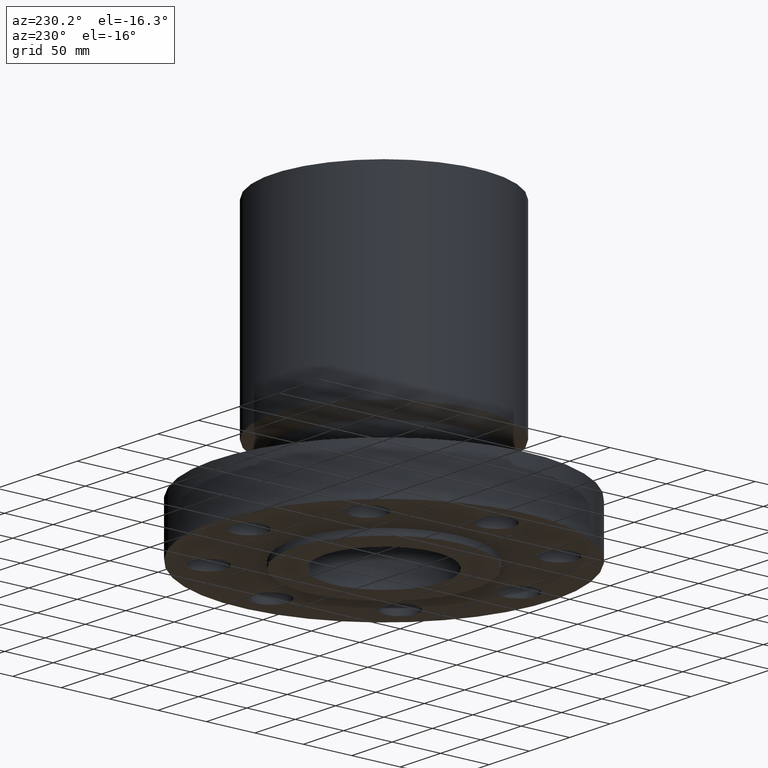
[diagram: clean part render]
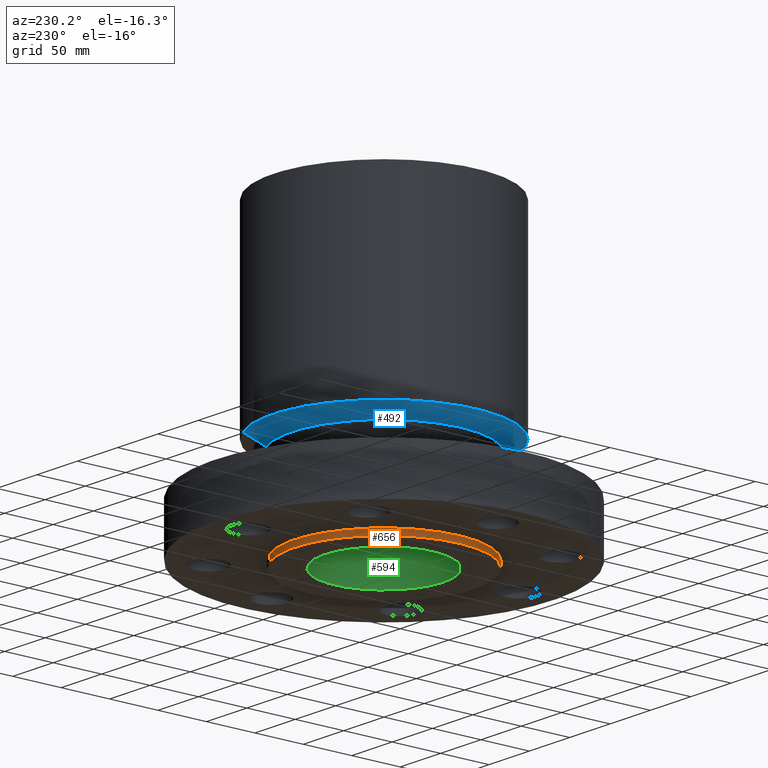
[diagram: same view with three faces highlighted in distinct colors, each labeled with its STEP entity id]
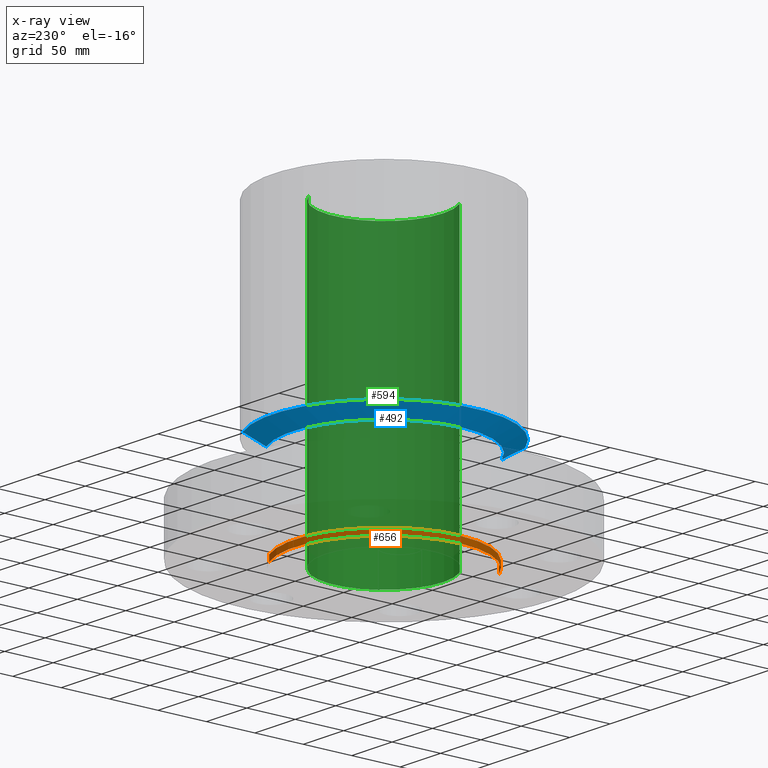
[diagram: x-ray of the same camera — body ghosted, the three highlighted faces saturated]
A machine part, auxiliary view with three faces highlighted in distinct colors.
The next image is the same camera in x-ray (body ghosted, the three faces saturated) — at least one of them is partly hidden behind the body in this view.
Their STEP definitions:

[orange] entity #656 — the highlighted cylindrical surface (partial cylindrical patch) has radius 92.837 mm, axis along (0, 0, -1).
#118=AXIS2_PLACEMENT_3D('Circle Axis2P3D',#116,#117,$) ;
#614=AXIS2_PLACEMENT_3D('Circle Axis2P3D',#612,#613,$) ;
#638=AXIS2_PLACEMENT_3D('Cylinder Axis2P3D',#635,#636,#637) ;
#111=CARTESIAN_POINT('Vertex',(1.75230034361,3.20756426372,0.)) ;
#113=CARTESIAN_POINT('Vertex',(-1.75230034361,-3.20756426372,0.)) ;
#116=CARTESIAN_POINT('Axis2P3D Location',(0.,0.,0.)) ;
#612=CARTESIAN_POINT('Axis2P3D Location',(0.,0.,-0.250000000001)) ;
#616=CARTESIAN_POINT('Vertex',(-1.75230034361,-3.20756426372,-0.250000000001)) ;
#618=CARTESIAN_POINT('Vertex',(1.75230034361,3.20756426372,-0.250000000001)) ;
#635=CARTESIAN_POINT('Axis2P3D Location',(0.,0.,5.75000000002)) ;
#640=CARTESIAN_POINT('Line Origine',(-1.75230034361,-3.20756426372,-0.125000000001)) ;
#645=CARTESIAN_POINT('Line Origine',(1.75230034361,3.20756426372,-0.125000000001)) ;
#117=DIRECTION('Axis2P3D Direction',(0.,0.,-0.0393700787402)) ;
#613=DIRECTION('Axis2P3D Direction',(0.,0.,-0.0393700787402)) ;
#636=DIRECTION('Axis2P3D Direction',(0.,0.,-0.0393700787402)) ;
#637=DIRECTION('Axis2P3D XDirection',(0.0188750212049,0.0345504945626,0.)) ;
#641=DIRECTION('Vector Direction',(0.,0.,-0.0393700787402)) ;
#646=DIRECTION('Vector Direction',(0.,0.,-0.0393700787402)) ;
#642=VECTOR('Line Direction',#641,0.0393700787402) ;
#647=VECTOR('Line Direction',#646,0.0393700787402) ;
#651=ORIENTED_EDGE('',*,*,#620,.F.) ;
#652=ORIENTED_EDGE('',*,*,#644,.T.) ;
#653=ORIENTED_EDGE('',*,*,#120,.T.) ;
#654=ORIENTED_EDGE('',*,*,#649,.F.) ;
#656=ADVANCED_FACE('PartBody',(#655),#639,.T.) ;
#119=CIRCLE('generated circle',#118,3.65500000001) ;
#615=CIRCLE('generated circle',#614,3.65500000001) ;
#639=CYLINDRICAL_SURFACE('generated cylinder',#638,3.65500000001) ;
#120=EDGE_CURVE('',#114,#112,#119,.T.) ;
#620=EDGE_CURVE('',#617,#619,#615,.T.) ;
#644=EDGE_CURVE('',#617,#114,#643,.F.) ;
#649=EDGE_CURVE('',#619,#112,#648,.F.) ;
#650=EDGE_LOOP('',(#651,#652,#653,#654)) ;
#655=FACE_OUTER_BOUND('',#650,.T.) ;
#643=LINE('Line',#640,#642) ;
#648=LINE('Line',#645,#647) ;
#112=VERTEX_POINT('',#111) ;
#114=VERTEX_POINT('',#113) ;
#617=VERTEX_POINT('',#616) ;
#619=VERTEX_POINT('',#618) ;

[blue] entity #492 — the highlighted conical surface has half-angle 60 deg.
#440=AXIS2_PLACEMENT_3D('Circle Axis2P3D',#438,#439,$) ;
#453=AXIS2_PLACEMENT_3D('Cone Axis2P3D',#450,#451,#452) ;
#483=AXIS2_PLACEMENT_3D('Circle Axis2P3D',#481,#482,$) ;
#416=CARTESIAN_POINT('Vertex',(1.79784576977,3.2909346071,3.50000000001)) ;
#423=CARTESIAN_POINT('Vertex',(-1.79784576977,-3.2909346071,3.50000000001)) ;
#438=CARTESIAN_POINT('Axis2P3D Location',(0.,0.,3.50000000001)) ;
#450=CARTESIAN_POINT('Axis2P3D Location',(0.,0.,3.50000000001)) ;
#455=CARTESIAN_POINT('Line Origine',(1.97763034675,3.62002806781,3.71650635096)) ;
#459=CARTESIAN_POINT('Vertex',(2.15741492373,3.94912152852,3.93301270191)) ;
#466=CARTESIAN_POINT('Vertex',(-2.15741492373,-3.94912152852,3.93301270191)) ;
#469=CARTESIAN_POINT('Line Origine',(-1.97763034675,-3.62002806781,3.71650635096)) ;
#481=CARTESIAN_POINT('Axis2P3D Location',(0.,0.,3.93301270191)) ;
#439=DIRECTION('Axis2P3D Direction',(0.,0.,-0.0393700787402)) ;
#451=DIRECTION('Axis2P3D Direction',(-0.,-0.,0.0393700787402)) ;
#452=DIRECTION('Axis2P3D XDirection',(0.0188750212049,0.0345504945626,0.)) ;
#456=DIRECTION('Vector Direction',(0.0163462478604,0.0299216060045,0.0196850393701)) ;
#470=DIRECTION('Vector Direction',(-0.0163462478604,-0.0299216060045,0.0196850393701)) ;
#482=DIRECTION('Axis2P3D Direction',(-0.,0.,0.0393700787402)) ;
#457=VECTOR('Line Direction',#456,0.0393700787402) ;
#471=VECTOR('Line Direction',#470,0.0393700787402) ;
#487=ORIENTED_EDGE('',*,*,#442,.F.) ;
#488=ORIENTED_EDGE('',*,*,#473,.T.) ;
#489=ORIENTED_EDGE('',*,*,#485,.T.) ;
#490=ORIENTED_EDGE('',*,*,#461,.F.) ;
#492=ADVANCED_FACE('PartBody',(#491),#454,.T.) ;
#441=CIRCLE('generated circle',#440,3.75000000002) ;
#484=CIRCLE('generated circle',#483,4.50000000002) ;
#454=CONICAL_SURFACE('Cone',#453,3.75000000001,1.0471975512) ;
#442=EDGE_CURVE('',#424,#417,#441,.T.) ;
#461=EDGE_CURVE('',#417,#460,#458,.T.) ;
#473=EDGE_CURVE('',#424,#467,#472,.T.) ;
#485=EDGE_CURVE('',#467,#460,#484,.F.) ;
#486=EDGE_LOOP('',(#487,#488,#489,#490)) ;
#491=FACE_OUTER_BOUND('',#486,.T.) ;
#458=LINE('Line',#455,#457) ;
#472=LINE('Line',#469,#471) ;
#417=VERTEX_POINT('',#416) ;
#424=VERTEX_POINT('',#423) ;
#460=VERTEX_POINT('',#459) ;
#467=VERTEX_POINT('',#466) ;

[green] entity #594 — the highlighted cylindrical surface (partial cylindrical patch) has radius 61.087 mm, axis along (0, 0, -1).
#556=AXIS2_PLACEMENT_3D('Circle Axis2P3D',#554,#555,$) ;
#567=AXIS2_PLACEMENT_3D('Cylinder Axis2P3D',#564,#565,#566) ;
#578=AXIS2_PLACEMENT_3D('Circle Axis2P3D',#576,#577,$) ;
#549=CARTESIAN_POINT('Vertex',(-1.15301842035,-2.11058606135,11.75)) ;
#551=CARTESIAN_POINT('Vertex',(1.15301842035,2.11058606135,11.75)) ;
#554=CARTESIAN_POINT('Axis2P3D Location',(0.,0.,11.75)) ;
#564=CARTESIAN_POINT('Axis2P3D Location',(0.,0.,5.75000000002)) ;
#569=CARTESIAN_POINT('Line Origine',(1.15301842035,2.11058606135,5.75000000002)) ;
#573=CARTESIAN_POINT('Vertex',(1.15301842035,2.11058606135,-0.250000000001)) ;
#576=CARTESIAN_POINT('Axis2P3D Location',(0.,0.,-0.250000000001)) ;
#580=CARTESIAN_POINT('Vertex',(-1.15301842035,-2.11058606135,-0.250000000001)) ;
#583=CARTESIAN_POINT('Line Origine',(-1.15301842035,-2.11058606135,5.75000000002)) ;
#555=DIRECTION('Axis2P3D Direction',(0.,0.,-0.0393700787402)) ;
#565=DIRECTION('Axis2P3D Direction',(0.,0.,-0.0393700787402)) ;
#566=DIRECTION('Axis2P3D XDirection',(-0.0188750212049,-0.0345504945626,0.)) ;
#570=DIRECTION('Vector Direction',(0.,0.,-0.0393700787402)) ;
#577=DIRECTION('Axis2P3D Direction',(0.,0.,-0.0393700787402)) ;
#584=DIRECTION('Vector Direction',(0.,0.,-0.0393700787402)) ;
#571=VECTOR('Line Direction',#570,0.0393700787402) ;
#585=VECTOR('Line Direction',#584,0.0393700787402) ;
#589=ORIENTED_EDGE('',*,*,#558,.F.) ;
#590=ORIENTED_EDGE('',*,*,#575,.T.) ;
#591=ORIENTED_EDGE('',*,*,#582,.T.) ;
#592=ORIENTED_EDGE('',*,*,#587,.F.) ;
#594=ADVANCED_FACE('PartBody',(#593),#568,.F.) ;
#557=CIRCLE('generated circle',#556,2.40500000001) ;
#579=CIRCLE('generated circle',#578,2.40500000001) ;
#568=CYLINDRICAL_SURFACE('generated cylinder',#567,2.40500000001) ;
#558=EDGE_CURVE('',#552,#550,#557,.T.) ;
#575=EDGE_CURVE('',#552,#574,#572,.T.) ;
#582=EDGE_CURVE('',#574,#581,#579,.T.) ;
#587=EDGE_CURVE('',#550,#581,#586,.T.) ;
#588=EDGE_LOOP('',(#589,#590,#591,#592)) ;
#593=FACE_OUTER_BOUND('',#588,.T.) ;
#572=LINE('Line',#569,#571) ;
#586=LINE('Line',#583,#585) ;
#550=VERTEX_POINT('',#549) ;
#552=VERTEX_POINT('',#551) ;
#574=VERTEX_POINT('',#573) ;
#581=VERTEX_POINT('',#580) ;